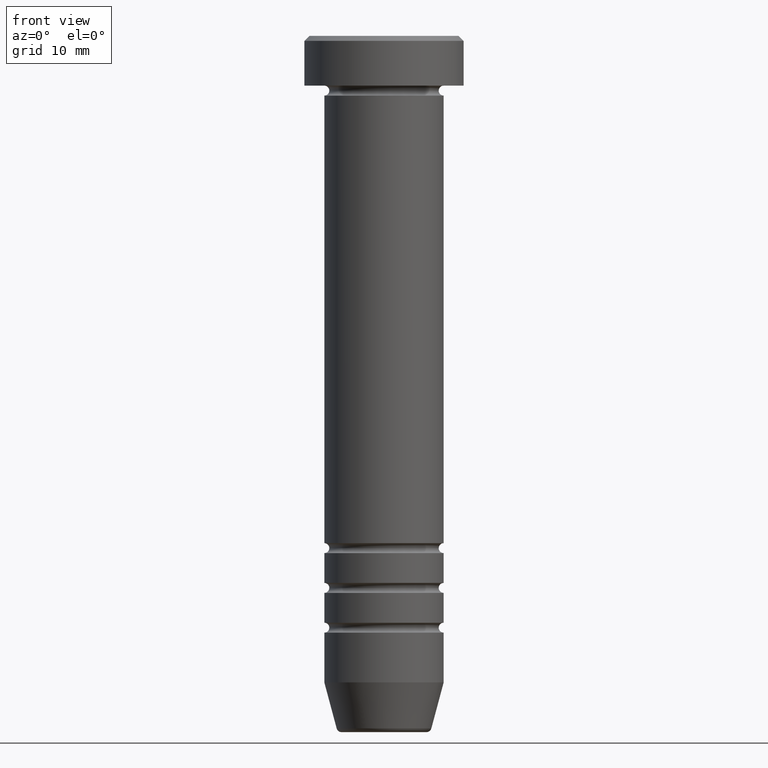
[diagram: clean part render]
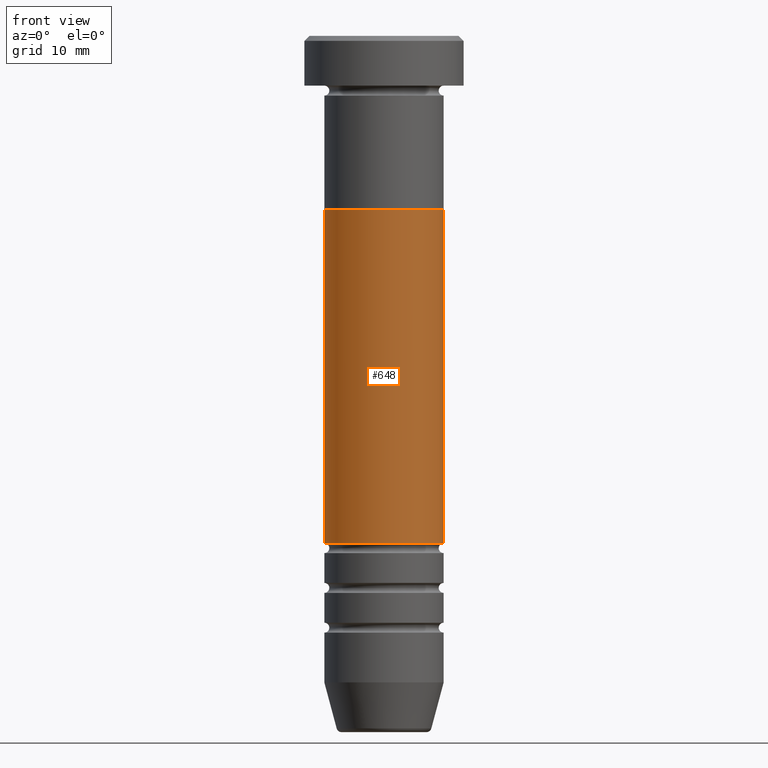
[diagram: same view with one face highlighted and labeled with its STEP entity id]
A machine part, front view. The second image highlights one B-rep face of the part: STEP entity #648.
In plain terms, the highlighted cylindrical surface (partial cylindrical patch) has radius 6 mm, axis along (-0, -0, 1).
Its self-contained STEP definition (entity closure, byte-faithful):
#8 = VERTEX_POINT ( 'NONE', #77 ) ;
#20 = CARTESIAN_POINT ( 'NONE',  ( -5.999999999999992895, 7.347880794884112834E-16, -51.00000000000001421 ) ) ;
#77 = CARTESIAN_POINT ( 'NONE',  ( 6.000000000000000000, 0.000000000000000000, -17.50000000000000000 ) ) ;
#78 = DIRECTION ( 'NONE',  ( 1.000000000000000000, 0.000000000000000000, 0.000000000000000000 ) ) ;
#166 = DIRECTION ( 'NONE',  ( 1.000000000000000000, 0.000000000000000000, 0.000000000000000000 ) ) ;
#178 = DIRECTION ( 'NONE',  ( 1.000000000000000000, 0.000000000000000000, 0.000000000000000000 ) ) ;
#252 = EDGE_CURVE ( 'NONE', #425, #948, #1056, .T. ) ;
#305 = DIRECTION ( 'NONE',  ( -0.000000000000000000, -0.000000000000000000, 1.000000000000000000 ) ) ;
#311 = AXIS2_PLACEMENT_3D ( 'NONE', #334, #488, #78 ) ;
#318 = CARTESIAN_POINT ( 'NONE',  ( -5.999999999999996447, 7.347880794884115792E-16, 0.000000000000000000 ) ) ;
#334 = CARTESIAN_POINT ( 'NONE',  ( 0.000000000000000000, 0.000000000000000000, -51.00000000000001421 ) ) ;
#369 = VECTOR ( 'NONE', #658, 1000.000000000000000 ) ;
#406 = EDGE_LOOP ( 'NONE', ( #830, #927, #787, #465 ) ) ;
#425 = VERTEX_POINT ( 'NONE', #20 ) ;
#465 = ORIENTED_EDGE ( 'NONE', *, *, #1059, .F. ) ;
#488 = DIRECTION ( 'NONE',  ( -0.000000000000000000, -0.000000000000000000, 1.000000000000000000 ) ) ;
#498 = CYLINDRICAL_SURFACE ( 'NONE', #879, 5.999999999999996447 ) ;
#541 = VECTOR ( 'NONE', #305, 1000.000000000000000 ) ;
#567 = CARTESIAN_POINT ( 'NONE',  ( 5.999999999999996447, 0.000000000000000000, 0.000000000000000000 ) ) ;
#574 = LINE ( 'NONE', #567, #541 ) ;
#587 = DIRECTION ( 'NONE',  ( -0.000000000000000000, -0.000000000000000000, 1.000000000000000000 ) ) ;
#648 = ADVANCED_FACE ( 'NONE', ( #903 ), #498, .T. ) ;
#658 = DIRECTION ( 'NONE',  ( -0.000000000000000000, -0.000000000000000000, 1.000000000000000000 ) ) ;
#682 = CARTESIAN_POINT ( 'NONE',  ( 0.000000000000000000, 0.000000000000000000, -17.50000000000000000 ) ) ;
#787 = ORIENTED_EDGE ( 'NONE', *, *, #1021, .T. ) ;
#807 = CARTESIAN_POINT ( 'NONE',  ( -6.000000000000000888, 7.347880794884120722E-16, -17.50000000000000000 ) ) ;
#819 = CIRCLE ( 'NONE', #311, 5.999999999999992895 ) ;
#830 = ORIENTED_EDGE ( 'NONE', *, *, #252, .F. ) ;
#837 = CARTESIAN_POINT ( 'NONE',  ( 0.000000000000000000, 0.000000000000000000, 0.000000000000000000 ) ) ;
#858 = VERTEX_POINT ( 'NONE', #982 ) ;
#870 = EDGE_CURVE ( 'NONE', #425, #858, #819, .T. ) ;
#879 = AXIS2_PLACEMENT_3D ( 'NONE', #837, #587, #166 ) ;
#903 = FACE_OUTER_BOUND ( 'NONE', #406, .T. ) ;
#916 = DIRECTION ( 'NONE',  ( -0.000000000000000000, -0.000000000000000000, 1.000000000000000000 ) ) ;
#927 = ORIENTED_EDGE ( 'NONE', *, *, #870, .T. ) ;
#928 = CIRCLE ( 'NONE', #1030, 6.000000000000000000 ) ;
#948 = VERTEX_POINT ( 'NONE', #807 ) ;
#982 = CARTESIAN_POINT ( 'NONE',  ( 5.999999999999992895, 0.000000000000000000, -51.00000000000001421 ) ) ;
#1021 = EDGE_CURVE ( 'NONE', #858, #8, #574, .T. ) ;
#1030 = AXIS2_PLACEMENT_3D ( 'NONE', #682, #916, #178 ) ;
#1056 = LINE ( 'NONE', #318, #369 ) ;
#1059 = EDGE_CURVE ( 'NONE', #948, #8, #928, .T. ) ;